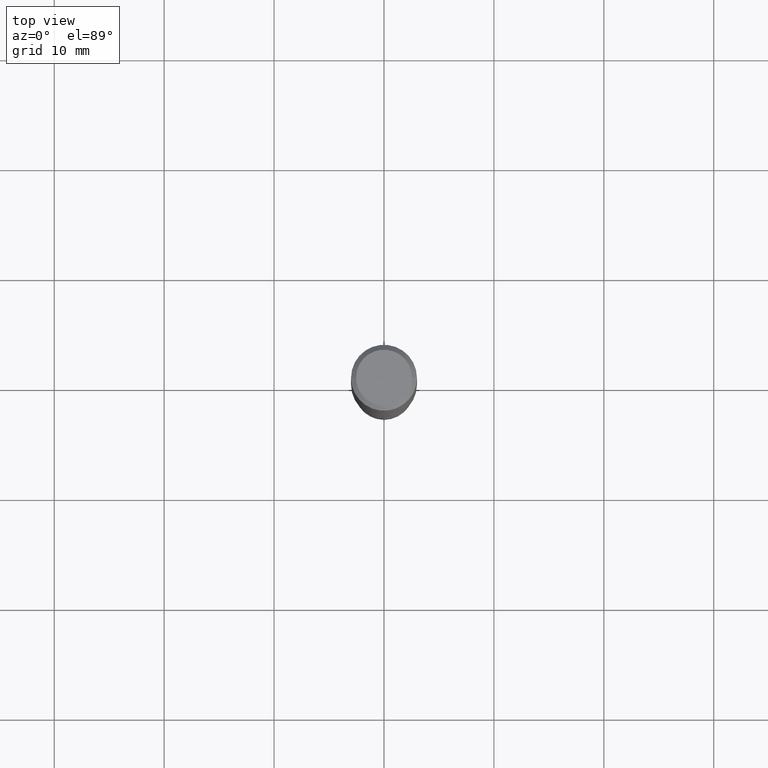
[diagram: clean part render]
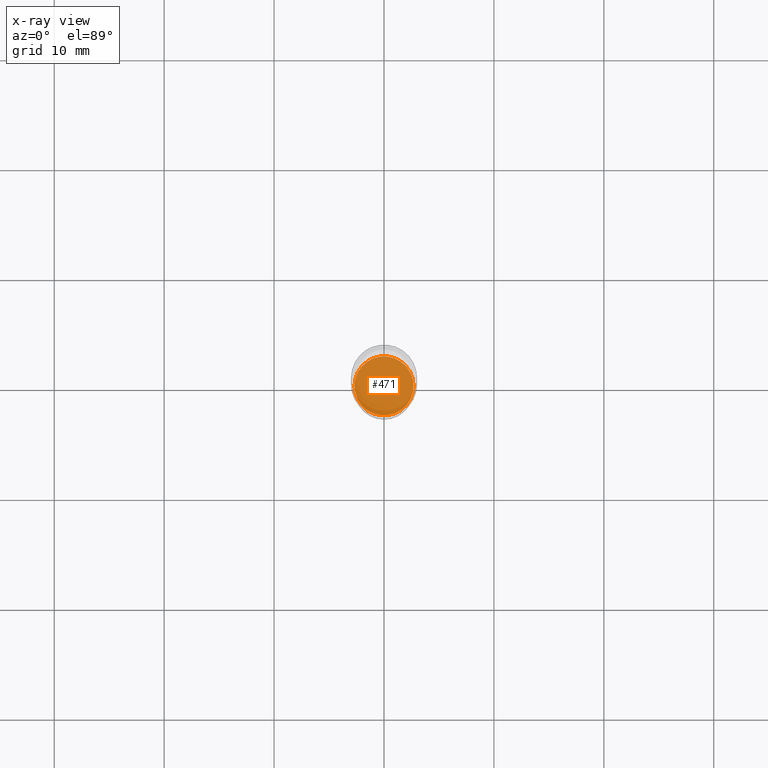
[diagram: x-ray — body ghosted, one internal face saturated and labeled with its STEP entity id]
A machine part, top view, then the same camera in x-ray: the body is ghosted and one INTERNAL B-rep face — a face not visible from any outside direction — is saturated and labeled: STEP entity #471.
In plain terms, the highlighted planar face has unit normal (-0, 0, 1).
Its self-contained STEP definition (entity closure, byte-faithful):
#1 = ORIENTED_EDGE ( 'NONE', *, *, #270, .F. ) ;
#9 = VERTEX_POINT ( 'NONE', #98 ) ;
#29 = AXIS2_PLACEMENT_3D ( 'NONE', #357, #402, #57 ) ;
#32 = DIRECTION ( 'NONE',  ( -2.445468806185136597E-29, 3.491481338843145583E-15, 1.000000000000000000 ) ) ;
#44 = EDGE_LOOP ( 'NONE', ( #315, #1 ) ) ;
#57 = DIRECTION ( 'NONE',  ( 1.000000000000000000, -6.982962677686265922E-15, 4.876176775795935793E-29 ) ) ;
#98 = CARTESIAN_POINT ( 'NONE',  ( 0.1058000000000000052, -6.704342466846604996E-15, -1.708599999999999897 ) ) ;
#113 = VERTEX_POINT ( 'NONE', #445 ) ;
#122 = FACE_OUTER_BOUND ( 'NONE', #44, .T. ) ;
#133 = AXIS2_PLACEMENT_3D ( 'NONE', #299, #32, #261 ) ;
#165 = AXIS2_PLACEMENT_3D ( 'NONE', #183, #274, #417 ) ;
#183 = CARTESIAN_POINT ( 'NONE',  ( 4.178328002247923804E-29, -5.965545015547398653E-15, -1.708599999999999897 ) ) ;
#194 = EDGE_CURVE ( 'NONE', #9, #113, #349, .T. ) ;
#251 = PLANE ( 'NONE',  #29 ) ;
#261 = DIRECTION ( 'NONE',  ( 1.000000000000000000, -6.982962677686264344E-15, 0.000000000000000000 ) ) ;
#270 = EDGE_CURVE ( 'NONE', #113, #9, #380, .T. ) ;
#274 = DIRECTION ( 'NONE',  ( -2.445468806185136597E-29, 3.491481338843145583E-15, 1.000000000000000000 ) ) ;
#299 = CARTESIAN_POINT ( 'NONE',  ( 4.178328002247923804E-29, -5.965545015547398653E-15, -1.708599999999999897 ) ) ;
#315 = ORIENTED_EDGE ( 'NONE', *, *, #194, .F. ) ;
#349 = CIRCLE ( 'NONE', #133, 0.1058000000000000052 ) ;
#357 = CARTESIAN_POINT ( 'NONE',  ( 4.178328002247923804E-29, -5.965545015547398653E-15, -1.708599999999999897 ) ) ;
#380 = CIRCLE ( 'NONE', #165, 0.1058000000000000052 ) ;
#402 = DIRECTION ( 'NONE',  ( -2.438088387897960049E-29, 3.491481338843145188E-15, 1.000000000000000000 ) ) ;
#417 = DIRECTION ( 'NONE',  ( 1.000000000000000000, -6.982962677686264344E-15, 0.000000000000000000 ) ) ;
#445 = CARTESIAN_POINT ( 'NONE',  ( -0.1058000000000000052, -5.211141573939101419E-15, -1.708599999999999897 ) ) ;
#471 = ADVANCED_FACE ( 'NONE', ( #122 ), #251, .F. ) ;